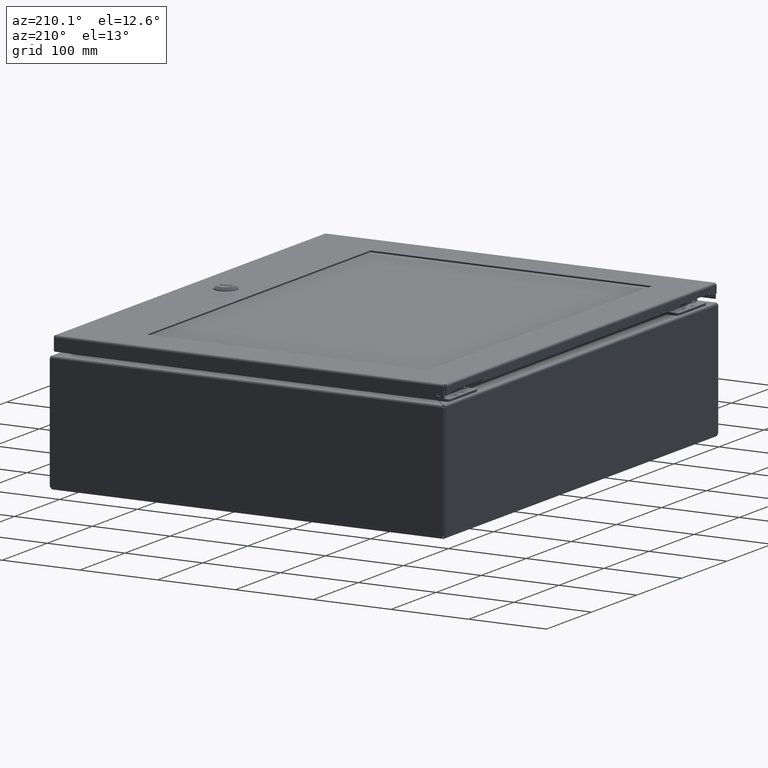
[diagram: clean part render]
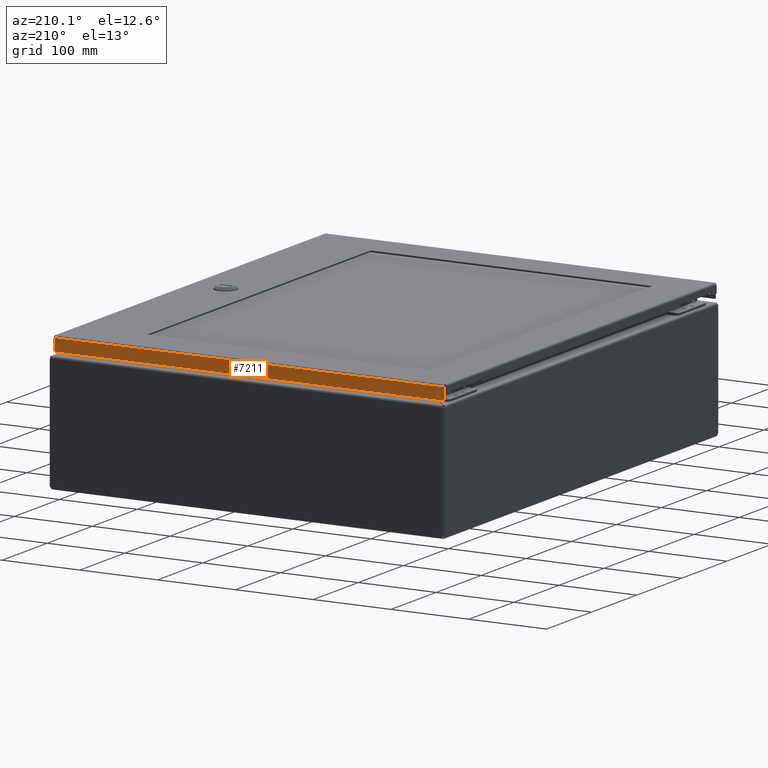
[diagram: same view with one face highlighted and labeled with its STEP entity id]
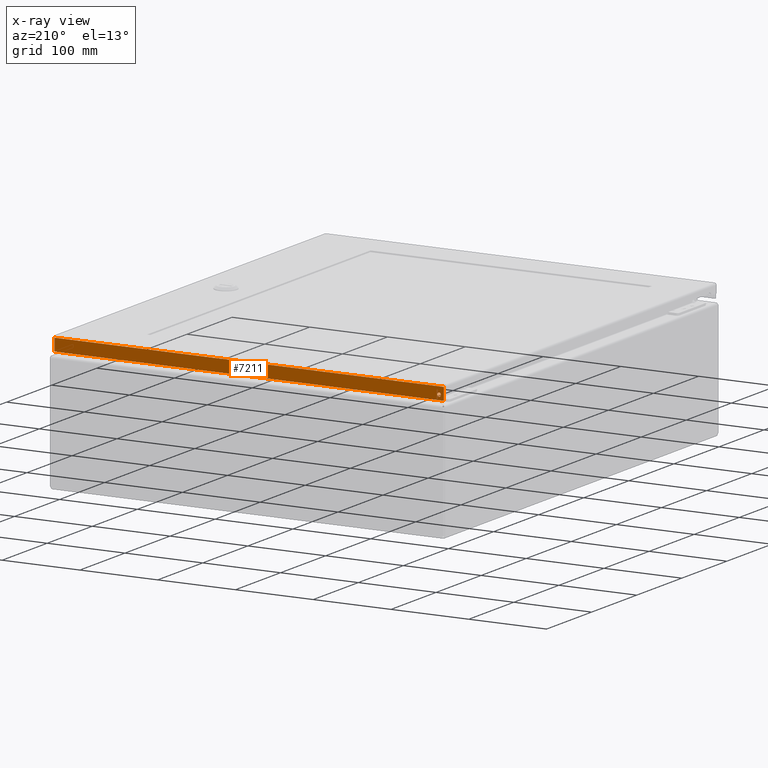
[diagram: x-ray of the same camera — body ghosted, the highlighted face saturated]
A machine part, auxiliary view. The second image highlights one B-rep face of the part: STEP entity #7211.
The next image is the same camera in x-ray: the body ghosted, the highlighted face saturated — about 0% of this face is hidden behind the body in this view.
In plain terms, the highlighted planar face has unit normal (0, -1, -0).
Its self-contained STEP definition (entity closure, byte-faithful):
#6201=CARTESIAN_POINT('',(19.633951456543961,23.750000000000007,0.480000000000002));
#6202=VERTEX_POINT('',#6201);
#6203=CARTESIAN_POINT('',(19.539951456543960,23.750000000000007,0.480000000000002));
#6204=DIRECTION('',(0.0,-1.0,0.0));
#6205=DIRECTION('',(-1.0,0.0,0.0));
#6206=AXIS2_PLACEMENT_3D('',#6203,#6204,#6205);
#6207=CIRCLE('',#6206,0.094000000000000);
#6208=EDGE_CURVE('',#6202,#6202,#6207,.T.);
#6966=CARTESIAN_POINT('',(19.789951456543964,23.750000000000007,0.105250000000004));
#6967=VERTEX_POINT('',#6966);
#6968=CARTESIAN_POINT('',(0.085048543456039,23.750000000000004,0.105250000000001));
#6969=VERTEX_POINT('',#6968);
#6970=CARTESIAN_POINT('',(19.789951456543964,23.750000000000007,0.105250000000001));
#6971=DIRECTION('',(-1.0,0.0,0.0));
#6972=VECTOR('',#6971,19.704902913087924);
#6973=LINE('',#6970,#6972);
#6974=EDGE_CURVE('',#6967,#6969,#6973,.T.);
#7053=CARTESIAN_POINT('',(0.085048543456030,23.750000000000004,0.730000000000000));
#7054=VERTEX_POINT('',#7053);
#7055=CARTESIAN_POINT('',(0.085048543456030,23.750000000000004,0.730000000000000));
#7056=DIRECTION('',(0.0,0.0,-1.0));
#7057=VECTOR('',#7056,0.624749999999998);
#7058=LINE('',#7055,#7057);
#7059=EDGE_CURVE('',#7054,#6969,#7058,.T.);
#7161=CARTESIAN_POINT('',(19.789951456543953,23.750000000000007,0.730000000000002));
#7162=VERTEX_POINT('',#7161);
#7163=CARTESIAN_POINT('',(19.789951456543953,23.750000000000004,0.105250000000004));
#7164=DIRECTION('',(0.0,0.0,1.0));
#7165=VECTOR('',#7164,0.624749999999999);
#7166=LINE('',#7163,#7165);
#7167=EDGE_CURVE('',#6967,#7162,#7166,.T.);
#7185=CARTESIAN_POINT('',(19.789951456543953,23.750000000000007,0.730000000000002));
#7186=DIRECTION('',(-1.0,0.0,0.0));
#7187=VECTOR('',#7186,19.704902913087921);
#7188=LINE('',#7185,#7187);
#7189=EDGE_CURVE('',#7162,#7054,#7188,.T.);
#7197=CARTESIAN_POINT('',(9.937499999999993,23.750000000000004,0.374799436818956));
#7198=DIRECTION('',(0.0,-1.0,0.0));
#7199=DIRECTION('',(1.0,0.0,0.0));
#7200=AXIS2_PLACEMENT_3D('',#7197,#7198,#7199);
#7201=PLANE('',#7200);
#7202=ORIENTED_EDGE('',*,*,#6974,.T.);
#7203=ORIENTED_EDGE('',*,*,#7059,.F.);
#7204=ORIENTED_EDGE('',*,*,#7189,.F.);
#7205=ORIENTED_EDGE('',*,*,#7167,.F.);
#7206=EDGE_LOOP('',(#7202,#7203,#7204,#7205));
#7207=FACE_OUTER_BOUND('',#7206,.T.);
#7208=ORIENTED_EDGE('',*,*,#6208,.T.);
#7209=EDGE_LOOP('',(#7208));
#7210=FACE_BOUND('',#7209,.T.);
#7211=ADVANCED_FACE('',(#7207,#7210),#7201,.F.);